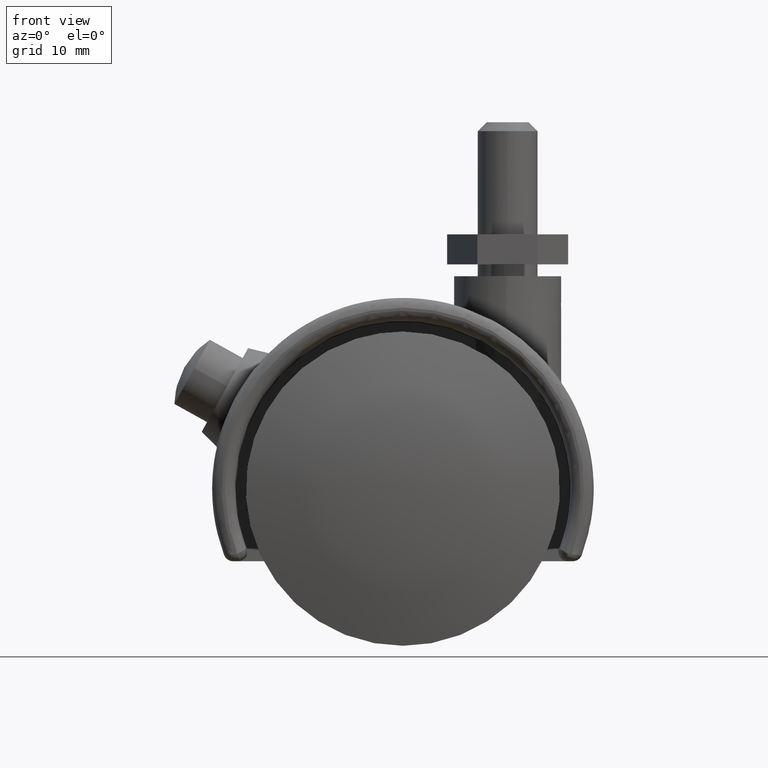
[diagram: clean part render]
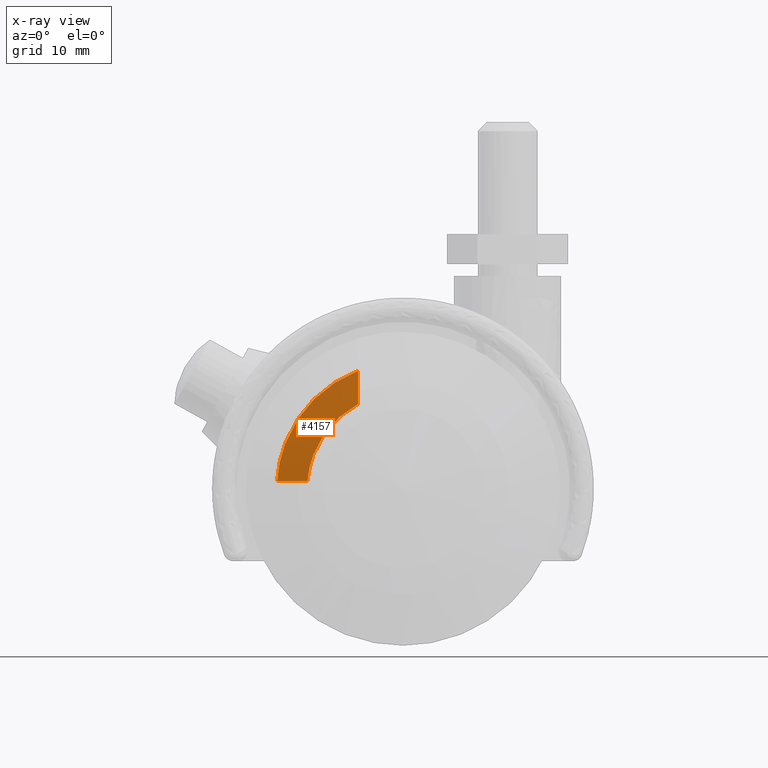
[diagram: x-ray — body ghosted, one internal face saturated and labeled with its STEP entity id]
A machine part, front view, then the same camera in x-ray: the body is ghosted and one INTERNAL B-rep face — a face not visible from any outside direction — is saturated and labeled: STEP entity #4157.
In plain terms, the highlighted face is a freeform B-spline surface patch.
Its self-contained STEP definition (entity closure, byte-faithful):
#3536=CARTESIAN_POINT('',(-6.0,6.500000000000000,11.306637484239340));
#3537=VERTEX_POINT('',#3536);
#3538=CARTESIAN_POINT('',(-12.760879718891101,6.500000000000000,1.000000000000012));
#3539=VERTEX_POINT('',#3538);
#3540=CARTESIAN_POINT('',(-6.000000000000006,6.500000000000000,11.306637484239360));
#3541=CARTESIAN_POINT('',(-12.211511158425301,6.500000000000001,8.010426121444519));
#3542=CARTESIAN_POINT('',(-12.760879718891109,6.500000000000000,1.000000000000013));
#3550=(BOUNDED_CURVE()B_SPLINE_CURVE(2,(#3540,#3541,#3542),.UNSPECIFIED.,.F.,.U.)CURVE()GEOMETRIC_REPRESENTATION_ITEM()QUASI_UNIFORM_CURVE()RATIONAL_B_SPLINE_CURVE((1.0,0.876449497537338,1.0))REPRESENTATION_ITEM(''));
#3551=EDGE_CURVE('',#3537,#3539,#3550,.T.);
#3888=CARTESIAN_POINT('',(-16.824806175168849,6.500000000000000,1.0));
#3889=VERTEX_POINT('',#3888);
#3920=CARTESIAN_POINT('',(-12.760879718891101,6.500000000000000,1.000000000000012));
#3921=CARTESIAN_POINT('',(-16.824806175168849,6.500000000000000,1.0));
#3922=QUASI_UNIFORM_CURVE('',1,(#3920,#3921),.UNSPECIFIED.,.F.,.U.);
#3923=EDGE_CURVE('',#3539,#3889,#3922,.T.);
#4061=CARTESIAN_POINT('',(-6.0,6.500000000000000,15.750368339565901));
#4062=VERTEX_POINT('',#4061);
#4063=CARTESIAN_POINT('',(-6.0,6.500000000000000,11.306637484239340));
#4064=CARTESIAN_POINT('',(-6.0,6.500000000000000,15.750368339565901));
#4065=QUASI_UNIFORM_CURVE('',1,(#4063,#4064),.UNSPECIFIED.,.F.,.U.);
#4066=EDGE_CURVE('',#3537,#4062,#4065,.T.);
#4090=CARTESIAN_POINT('',(-6.000000000000007,6.500000000000000,15.750368339565920));
#4091=CARTESIAN_POINT('',(-16.178563301237570,6.500000000000000,11.872911095978138));
#4092=CARTESIAN_POINT('',(-16.824806175168870,6.500000000000000,1.0));
#4100=(BOUNDED_CURVE()B_SPLINE_CURVE(2,(#4090,#4091,#4092),.UNSPECIFIED.,.F.,.U.)CURVE()GEOMETRIC_REPRESENTATION_ITEM()QUASI_UNIFORM_CURVE()RATIONAL_B_SPLINE_CURVE((1.0,0.839882582692310,1.0))REPRESENTATION_ITEM(''));
#4101=EDGE_CURVE('',#4062,#3889,#4100,.T.);
#4146=CARTESIAN_POINT('',(-17.365505324253501,6.500000000000000,0.263219182726437));
#4147=CARTESIAN_POINT('',(-5.459300657352735,6.500000000000000,0.263219182726437));
#4148=CARTESIAN_POINT('',(-17.365505324253501,6.500000000000000,16.487148497446618));
#4149=CARTESIAN_POINT('',(-5.459300657352735,6.500000000000000,16.487148497446618));
#4150=B_SPLINE_SURFACE_WITH_KNOTS('',1,1,((#4146,#4148),(#4147,#4149)),.UNSPECIFIED.,.F.,.F.,.U.,(2,2),(2,2),(0.0,11.906204666900759),(0.0,16.223929314720181),.UNSPECIFIED.);
#4151=ORIENTED_EDGE('',*,*,#3551,.T.);
#4152=ORIENTED_EDGE('',*,*,#3923,.T.);
#4153=ORIENTED_EDGE('',*,*,#4101,.F.);
#4154=ORIENTED_EDGE('',*,*,#4066,.F.);
#4155=EDGE_LOOP('',(#4151,#4152,#4153,#4154));
#4156=FACE_OUTER_BOUND('',#4155,.T.);
#4157=ADVANCED_FACE('',(#4156),#4150,.F.);